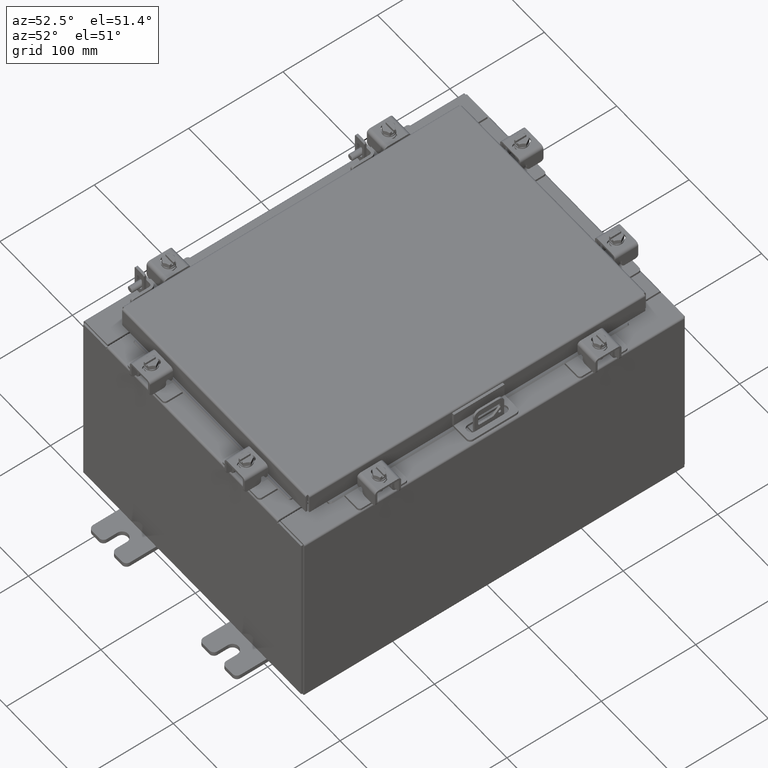
[diagram: clean part render]
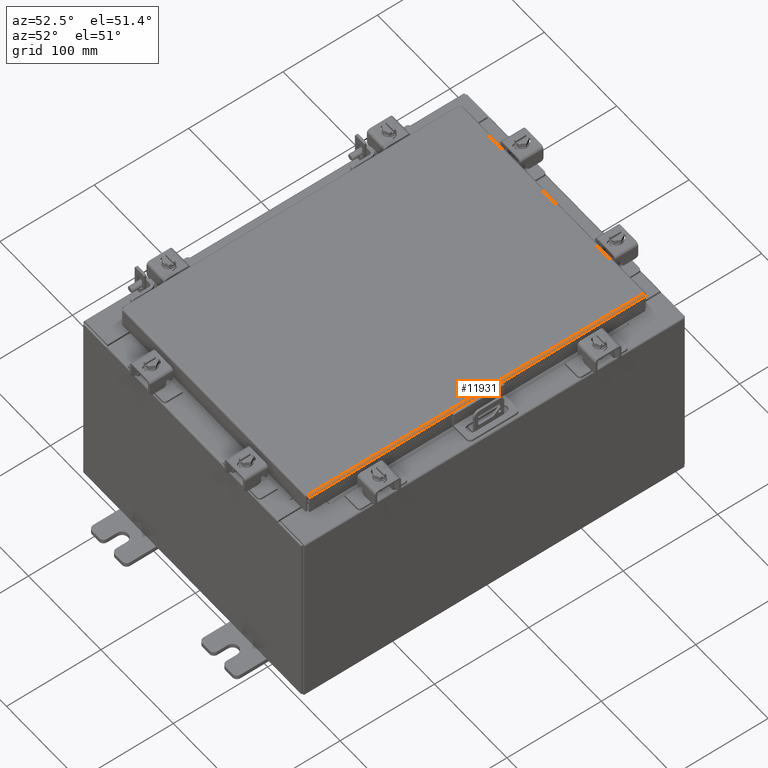
[diagram: same view with one face highlighted and labeled with its STEP entity id]
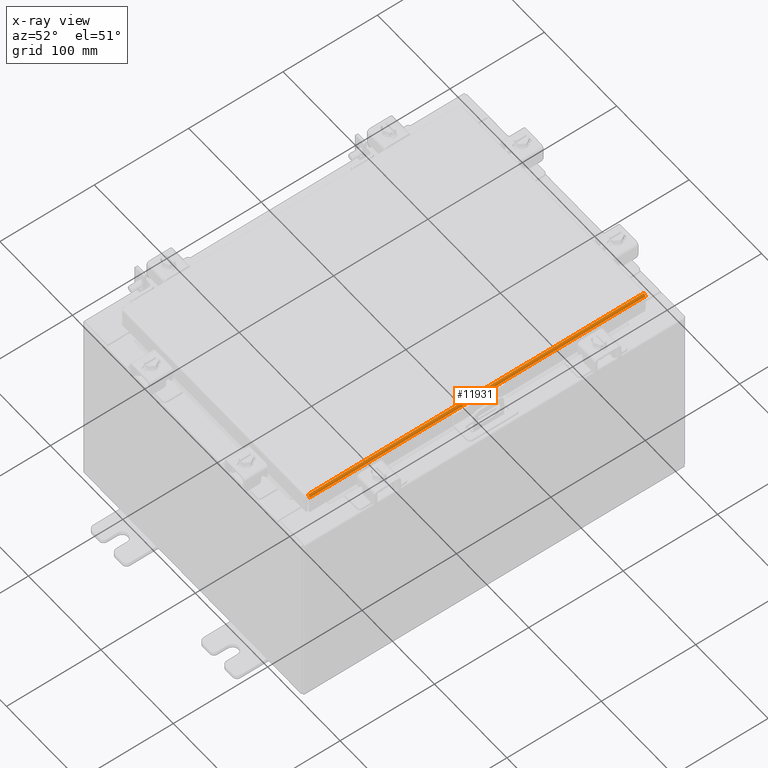
[diagram: x-ray of the same camera — body ghosted, the highlighted face saturated]
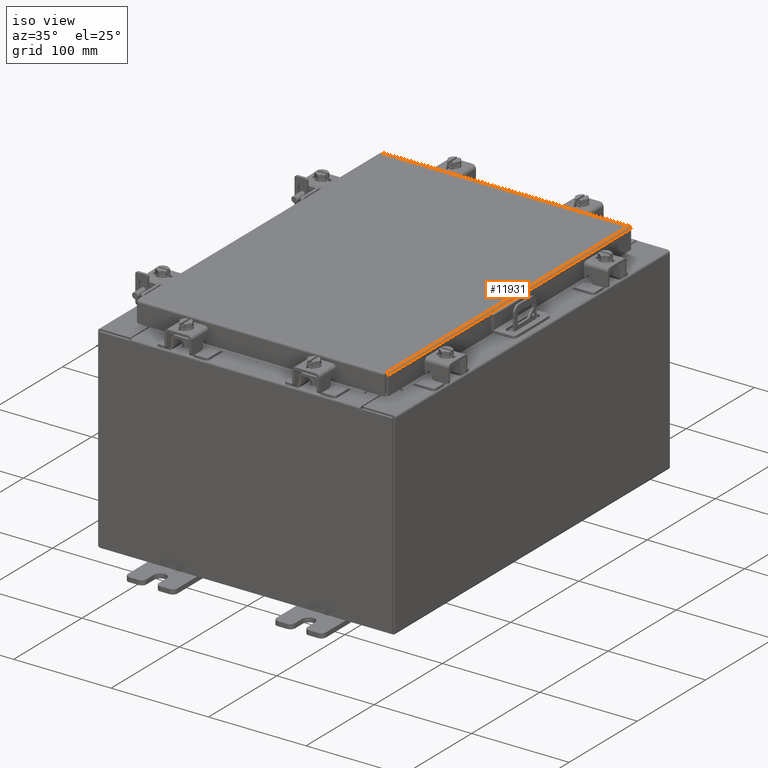
[diagram: same view with one face highlighted and labeled with its STEP entity id]
A machine part, auxiliary view. The second image highlights one B-rep face of the part: STEP entity #11931.
The next image is the same camera in x-ray: the body ghosted, the highlighted face saturated — about 0% of this face is hidden behind the body in this view.
A second angle (iso view) of the same face is appended — the face is thin or edge-on in the first view.
In plain terms, the highlighted cylindrical surface (edge-blend (fillet) strip) has radius 2.2276 mm, axis along (-0, -1, -0).
Its self-contained STEP definition (entity closure, byte-faithful):
#199 = CARTESIAN_POINT ( 'NONE',  ( 5.077999999999998500, 7.005157864376269700, -0.08769999999999951400 ) ) ;
#1003 = CARTESIAN_POINT ( 'NONE',  ( 5.075717403743807300, -7.005348220313559100, -0.06474471054168771900 ) ) ;
#2051 = CARTESIAN_POINT ( 'NONE',  ( 4.990299999999998600, -7.006300000000000400, 3.414809992080329000E-016 ) ) ;
#2249 = VERTEX_POINT ( 'NONE', #15838 ) ;
#2312 = CARTESIAN_POINT ( 'NONE',  ( 5.077999999999998500, -6.754526897220028000E-018, -0.08769999999999951400 ) ) ;
#2351 = DIRECTION ( 'NONE',  ( -0.0000000000000000000, -1.000000000000000000, -0.0000000000000000000 ) ) ;
#2594 = CARTESIAN_POINT ( 'NONE',  ( 5.077999999999997600, -7.005253042344914900, -0.07622009684500344300 ) ) ;
#2752 = CARTESIAN_POINT ( 'NONE',  ( 5.060430782078317000, -7.005633754219491700, -0.03380425265819786400 ) ) ;
#3304 = ORIENTED_EDGE ( 'NONE', *, *, #4454, .F. ) ;
#3351 = VERTEX_POINT ( 'NONE', #21409 ) ;
#4063 = DIRECTION ( 'NONE',  ( -2.171061248348209200E-031, -1.000000000000000000, 7.701855070945201600E-017 ) ) ;
#4454 = EDGE_CURVE ( 'NONE', #19065, #3351, #13292, .T. ) ;
#4471 = CARTESIAN_POINT ( 'NONE',  ( 5.034467384578526600, -7.005919288125422600, -0.01106893374133063200 ) ) ;
#5281 = CARTESIAN_POINT ( 'NONE',  ( 5.013255289458308900, 7.006109644062711100, -0.002282596256188504900 ) ) ;
#5751 = CARTESIAN_POINT ( 'NONE',  ( 4.990299999999998600, -7.006300000000000400, 3.414809992080329000E-016 ) ) ;
#5760 = DIRECTION ( 'NONE',  ( 1.000000000000000000, 0.0000000000000000000, 2.725618009642215600E-015 ) ) ;
#6014 = VECTOR ( 'NONE', #4063, 39.37007874015748100 ) ;
#6073 = ORIENTED_EDGE ( 'NONE', *, *, #19387, .F. ) ;
#6192 = CARTESIAN_POINT ( 'NONE',  ( 5.001779903154990800, -7.006204822031357100, 3.426148228382157600E-016 ) ) ;
#6489 = EDGE_CURVE ( 'NONE', #15922, #19065, #7196, .T. ) ;
#7009 = CARTESIAN_POINT ( 'NONE',  ( 5.044195747341801100, 7.005824110156779300, -0.01756921792168015000 ) ) ;
#7196 = LINE ( 'NONE', #2051, #15738 ) ;
#7629 = B_SPLINE_CURVE_WITH_KNOTS ( 'NONE', 3,
 ( #16334, #2594, #1003, #12990, #2752, #14716, #4471, #16414, #6192, #18105 ),
 .UNSPECIFIED., .F., .F.,
 ( 4, 2, 2, 2, 4 ),
 ( 0.0000000000000000000, 0.2500000000000000000, 0.5000000000000000000, 0.7500000000000000000, 1.000000000000000000 ),
 .UNSPECIFIED. ) ;
#8638 = CARTESIAN_POINT ( 'NONE',  ( 4.990299999999998600, 7.006300000000000400, -2.048885995248197400E-016 ) ) ;
#8723 = CARTESIAN_POINT ( 'NONE',  ( 5.066931066258668200, 7.005538576250847500, -0.04353261542147385900 ) ) ;
#10242 = ORIENTED_EDGE ( 'NONE', *, *, #6489, .F. ) ;
#10365 = AXIS2_PLACEMENT_3D ( 'NONE', #12623, #2351, #5760 ) ;
#10416 = CARTESIAN_POINT ( 'NONE',  ( 5.077999999999998500, 7.005253042344914900, -0.07622009684501027100 ) ) ;
#10652 = DIRECTION ( 'NONE',  ( 0.0000000000000000000, 1.000000000000000000, 0.0000000000000000000 ) ) ;
#11068 = LINE ( 'NONE', #2312, #6014 ) ;
#11195 = EDGE_LOOP ( 'NONE', ( #10242, #13992, #6073, #3304 ) ) ;
#11931 = ADVANCED_FACE ( 'NONE', ( #14360 ), #17782, .T. ) ;
#12623 = CARTESIAN_POINT ( 'NONE',  ( 4.990299999999998600, -7.006300000000000400, -0.08769999999999975000 ) ) ;
#12990 = CARTESIAN_POINT ( 'NONE',  ( 5.066931066258664600, -7.005538576250844900, -0.04353261542146956400 ) ) ;
#13292 = B_SPLINE_CURVE_WITH_KNOTS ( 'NONE', 3,
 ( #8638, #20486, #5281, #17202, #7009, #18881, #8723, #20571, #10416, #199 ),
 .UNSPECIFIED., .F., .F.,
 ( 4, 2, 2, 2, 4 ),
 ( 0.0000000000000000000, 0.2500000000000000000, 0.5000000000000000000, 0.7500000000000000000, 1.000000000000000000 ),
 .UNSPECIFIED. ) ;
#13992 = ORIENTED_EDGE ( 'NONE', *, *, #14048, .F. ) ;
#14048 = EDGE_CURVE ( 'NONE', #2249, #15922, #7629, .T. ) ;
#14360 = FACE_OUTER_BOUND ( 'NONE', #11195, .T. ) ;
#14716 = CARTESIAN_POINT ( 'NONE',  ( 5.044195747341799300, -7.005824110156780200, -0.01756921792167830500 ) ) ;
#15738 = VECTOR ( 'NONE', #10652, 39.37007874015748100 ) ;
#15838 = CARTESIAN_POINT ( 'NONE',  ( 5.077999999999998500, -7.005157864376269700, -0.08769999999999897300 ) ) ;
#15922 = VERTEX_POINT ( 'NONE', #5751 ) ;
#16334 = CARTESIAN_POINT ( 'NONE',  ( 5.077999999999998500, -7.005157864376269700, -0.08769999999999897300 ) ) ;
#16414 = CARTESIAN_POINT ( 'NONE',  ( 5.013255289458306200, -7.006109644062711100, -0.002282596256188245100 ) ) ;
#17202 = CARTESIAN_POINT ( 'NONE',  ( 5.034467384578526600, 7.005919288125420900, -0.01106893374133180600 ) ) ;
#17782 = CYLINDRICAL_SURFACE ( 'NONE', #10365, 0.08770000000000026400 ) ;
#18105 = CARTESIAN_POINT ( 'NONE',  ( 4.990299999999998600, -7.006300000000000400, 3.414809992080329000E-016 ) ) ;
#18881 = CARTESIAN_POINT ( 'NONE',  ( 5.060430782078320500, 7.005633754219490000, -0.03380425265820125700 ) ) ;
#19065 = VERTEX_POINT ( 'NONE', #20188 ) ;
#19387 = EDGE_CURVE ( 'NONE', #3351, #2249, #11068, .T. ) ;
#20188 = CARTESIAN_POINT ( 'NONE',  ( 4.990299999999998600, 7.006300000000000400, -2.048885995248197400E-016 ) ) ;
#20486 = CARTESIAN_POINT ( 'NONE',  ( 5.001779903154991700, 7.006204822031357100, 3.421479542846109600E-016 ) ) ;
#20571 = CARTESIAN_POINT ( 'NONE',  ( 5.075717403743809100, 7.005348220313559100, -0.06474471054169367300 ) ) ;
#21409 = CARTESIAN_POINT ( 'NONE',  ( 5.077999999999998500, 7.005157864376269700, -0.08769999999999951400 ) ) ;